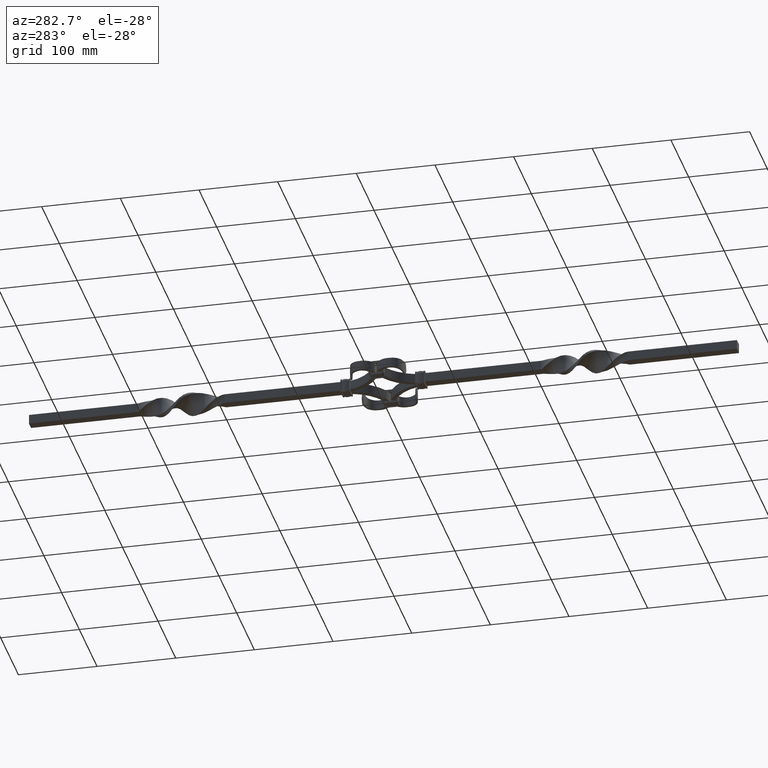
[diagram: clean part render]
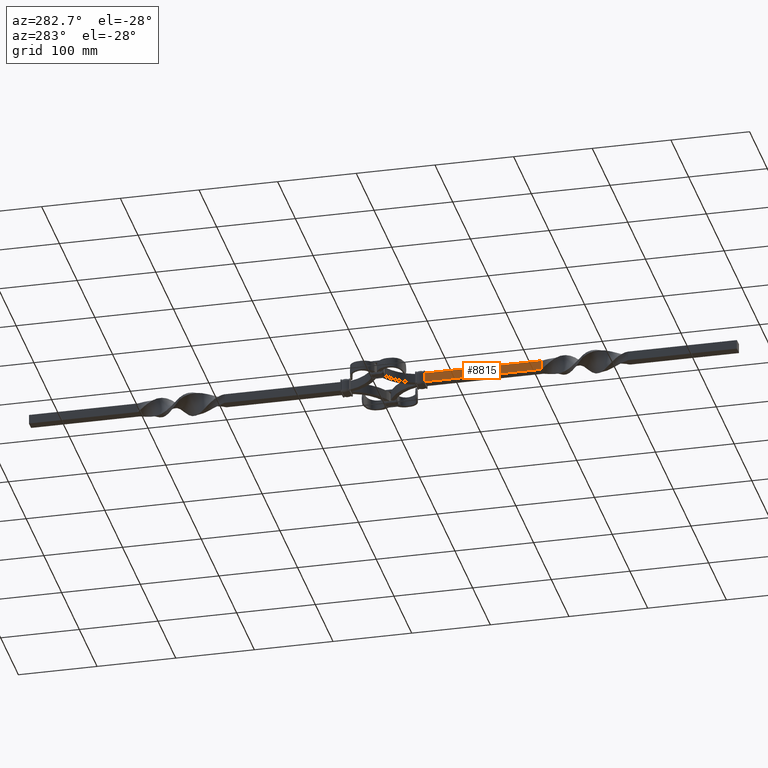
[diagram: same view with one face highlighted and labeled with its STEP entity id]
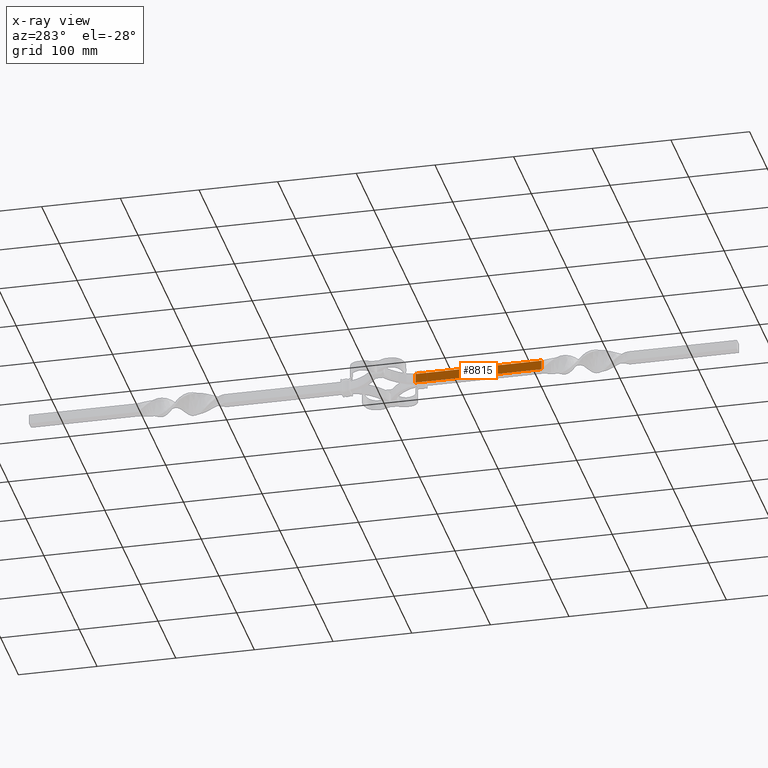
[diagram: x-ray of the same camera — body ghosted, the highlighted face saturated]
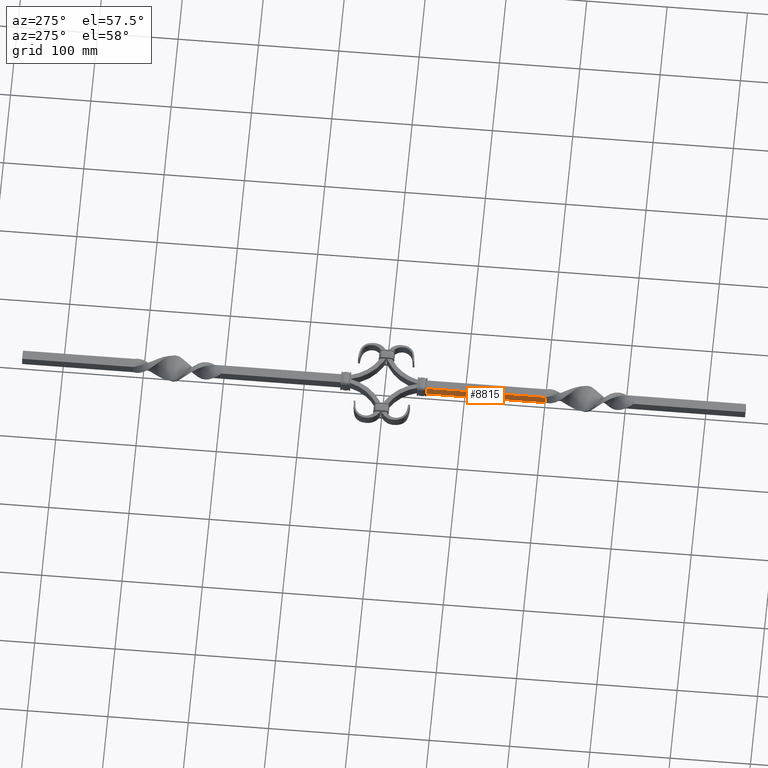
[diagram: same view with one face highlighted and labeled with its STEP entity id]
A machine part, auxiliary view. The second image highlights one B-rep face of the part: STEP entity #8815.
The next image is the same camera in x-ray: the body ghosted, the highlighted face saturated — about 0% of this face is hidden behind the body in this view.
A second angle (auxiliary view) of the same face is appended — the face is thin or edge-on in the first view.
In plain terms, the highlighted planar face has unit normal (1, 0, 0).
Its self-contained STEP definition (entity closure, byte-faithful):
#964 = LINE ( 'NONE', #25403, #26211 ) ;
#2647 = B_SPLINE_CURVE_WITH_KNOTS ( 'NONE', 3,
 ( #29817, #29487, #15101, #17552 ),
 .UNSPECIFIED., .F., .F.,
 ( 4, 4 ),
 ( 0.000000000000000000, 1.000000000000000000 ),
 .UNSPECIFIED. ) ;
#3250 = DIRECTION ( 'NONE',  ( 1.000000000000000000, 8.591735456650580917E-18, 6.838402388021532523E-15 ) ) ;
#3932 = CARTESIAN_POINT ( 'NONE',  ( -6.000000000000044409, -155.3333333333333144, 5.999999999999956479 ) ) ;
#4180 = VERTEX_POINT ( 'NONE', #13737 ) ;
#4913 = EDGE_CURVE ( 'NONE', #4180, #8038, #18230, .T. ) ;
#5175 = CARTESIAN_POINT ( 'NONE',  ( -6.000000000000044409, -24.52943725152274013, 5.999999833333291122 ) ) ;
#5787 = LINE ( 'NONE', #5175, #8818 ) ;
#7710 = ORIENTED_EDGE ( 'NONE', *, *, #14939, .T. ) ;
#7984 = CARTESIAN_POINT ( 'NONE',  ( -6.000229065626568214, -201.4998782682386604, -5.999999864528060556 ) ) ;
#8038 = VERTEX_POINT ( 'NONE', #10085 ) ;
#8815 = ADVANCED_FACE ( 'NONE', ( #21433 ), #22422, .F. ) ;
#8818 = VECTOR ( 'NONE', #10073, 1000.000000000000000 ) ;
#9457 = CARTESIAN_POINT ( 'NONE',  ( -5.999999833333294674, -24.52943725152274013, -6.000000000000043521 ) ) ;
#10073 = DIRECTION ( 'NONE',  ( 8.591735456650550102E-18, -1.000000000000000000, 4.456787267672614845E-18 ) ) ;
#10085 = CARTESIAN_POINT ( 'NONE',  ( -5.999999833333294674, -63.00000000000000000, -6.000000000000043521 ) ) ;
#10217 = CARTESIAN_POINT ( 'NONE',  ( -5.999999999999961808, -155.3333333333333144, -6.000000000000042633 ) ) ;
#11882 = B_SPLINE_CURVE_WITH_KNOTS ( 'NONE', 3,
 ( #15023, #15139, #10217, #7984 ),
 .UNSPECIFIED., .F., .F.,
 ( 4, 4 ),
 ( 0.000000000000000000, 1.000000000000000000 ),
 .UNSPECIFIED. ) ;
#12818 = VECTOR ( 'NONE', #16845, 1000.000000000000000 ) ;
#13329 = EDGE_CURVE ( 'NONE', #4180, #22219, #964, .T. ) ;
#13737 = CARTESIAN_POINT ( 'NONE',  ( -5.999999833333294674, -41.50000000000000000, -6.000000000000043521 ) ) ;
#14305 = CARTESIAN_POINT ( 'NONE',  ( -5.999912603202407269, -201.4999898177597402, 6.000000037428977251 ) ) ;
#14502 = CARTESIAN_POINT ( 'NONE',  ( -6.000229065626568214, -201.4998782682386604, -5.999999864528060556 ) ) ;
#14831 = ORIENTED_EDGE ( 'NONE', *, *, #28156, .F. ) ;
#14939 = EDGE_CURVE ( 'NONE', #8038, #23184, #11882, .T. ) ;
#15023 = CARTESIAN_POINT ( 'NONE',  ( -5.999999833333294674, -63.00000000000000000, -6.000000000000043521 ) ) ;
#15101 = CARTESIAN_POINT ( 'NONE',  ( -6.000295489130485826, -201.4998305582330431, -1.999999746989456151 ) ) ;
#15139 = CARTESIAN_POINT ( 'NONE',  ( -5.999999999999960920, -109.1666666666666856, -6.000000000000042633 ) ) ;
#16845 = DIRECTION ( 'NONE',  ( 8.591735456650550102E-18, -1.000000000000000000, 4.456787267672614845E-18 ) ) ;
#16890 = AXIS2_PLACEMENT_3D ( 'NONE', #25296, #3250, #22852 ) ;
#16939 = VERTEX_POINT ( 'NONE', #14305 ) ;
#17533 = ORIENTED_EDGE ( 'NONE', *, *, #23856, .F. ) ;
#17552 = CARTESIAN_POINT ( 'NONE',  ( -6.000229065626568214, -201.4998782682386604, -5.999999864528060556 ) ) ;
#18230 = LINE ( 'NONE', #9457, #12818 ) ;
#19654 = B_SPLINE_CURVE_WITH_KNOTS ( 'NONE', 3,
 ( #30836, #28375, #3932, #21072 ),
 .UNSPECIFIED., .F., .F.,
 ( 4, 4 ),
 ( 0.000000000000000000, 1.000000000000000000 ),
 .UNSPECIFIED. ) ;
#20585 = DIRECTION ( 'NONE',  ( -1.388889601337362727E-08, 0.000000000000000000, 0.9999999999999998890 ) ) ;
#20885 = EDGE_CURVE ( 'NONE', #16939, #23184, #2647, .T. ) ;
#20888 = CARTESIAN_POINT ( 'NONE',  ( -6.000000000000044409, -63.00000000000000000, 5.999999833333291122 ) ) ;
#20899 = ORIENTED_EDGE ( 'NONE', *, *, #13329, .F. ) ;
#21072 = CARTESIAN_POINT ( 'NONE',  ( -5.999912603202407269, -201.4999898177597402, 6.000000037428977251 ) ) ;
#21433 = FACE_OUTER_BOUND ( 'NONE', #23693, .T. ) ;
#21547 = VERTEX_POINT ( 'NONE', #20888 ) ;
#22219 = VERTEX_POINT ( 'NONE', #23607 ) ;
#22422 = PLANE ( 'NONE',  #16890 ) ;
#22852 = DIRECTION ( 'NONE',  ( 6.838402388021532523E-15, -4.456787267672556297E-18, -1.000000000000000000 ) ) ;
#23184 = VERTEX_POINT ( 'NONE', #14502 ) ;
#23607 = CARTESIAN_POINT ( 'NONE',  ( -6.000000000000044409, -41.50000000000000000, 5.999999833333292010 ) ) ;
#23693 = EDGE_LOOP ( 'NONE', ( #17533, #14831, #20899, #27262, #7710, #28869 ) ) ;
#23856 = EDGE_CURVE ( 'NONE', #21547, #16939, #19654, .T. ) ;
#25296 = CARTESIAN_POINT ( 'NONE',  ( -5.999999999999962697, -63.00000000000000000, -6.000000000000043521 ) ) ;
#25403 = CARTESIAN_POINT ( 'NONE',  ( -5.999999833333294674, -41.50000000000000000, -6.000000000000043521 ) ) ;
#26211 = VECTOR ( 'NONE', #20585, 1000.000000000000114 ) ;
#27262 = ORIENTED_EDGE ( 'NONE', *, *, #4913, .T. ) ;
#28156 = EDGE_CURVE ( 'NONE', #22219, #21547, #5787, .T. ) ;
#28375 = CARTESIAN_POINT ( 'NONE',  ( -6.000000000000044409, -109.1666666666666856, 5.999999999999956479 ) ) ;
#28869 = ORIENTED_EDGE ( 'NONE', *, *, #20885, .F. ) ;
#29487 = CARTESIAN_POINT ( 'NONE',  ( -6.000084624602543215, -201.4999049245587912, 2.000000241865568462 ) ) ;
#29817 = CARTESIAN_POINT ( 'NONE',  ( -5.999912603202407269, -201.4999898177597402, 6.000000037428977251 ) ) ;
#30836 = CARTESIAN_POINT ( 'NONE',  ( -6.000000000000044409, -63.00000000000000000, 5.999999833333291122 ) ) ;